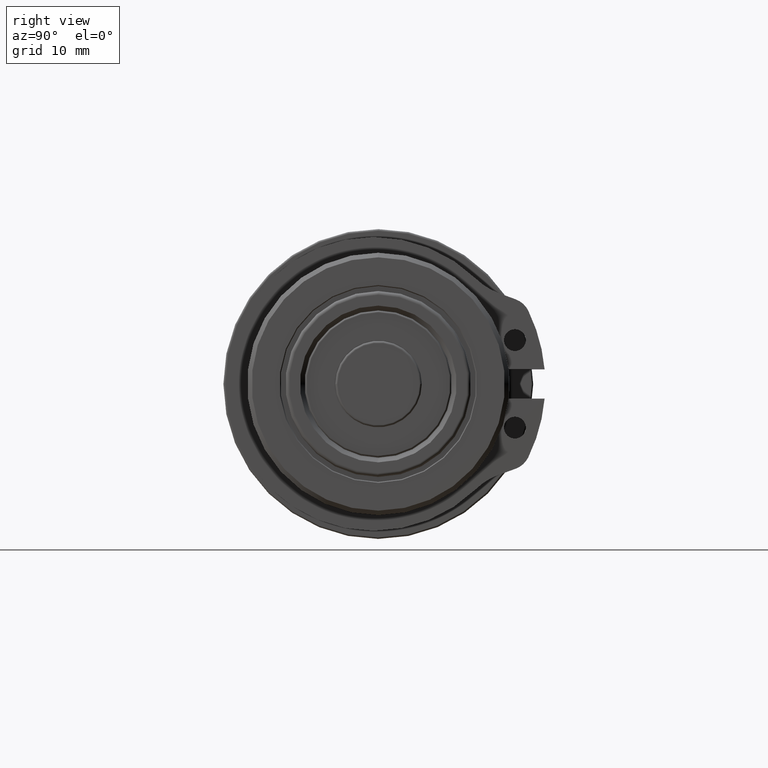
[diagram: clean part render]
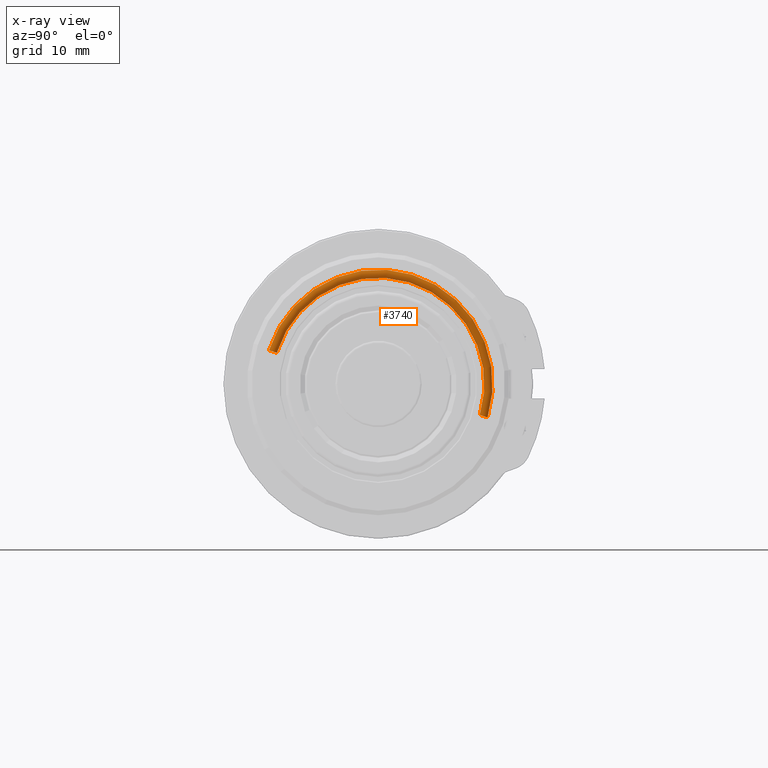
[diagram: x-ray — body ghosted, one internal face saturated and labeled with its STEP entity id]
A machine part, right view, then the same camera in x-ray: the body is ghosted and one INTERNAL B-rep face — a face not visible from any outside direction — is saturated and labeled: STEP entity #3740.
In plain terms, the highlighted toroidal blend (fillet) surface has major radius 12.1 mm and minor (blend) radius 0.45 mm.
Its self-contained STEP definition (entity closure, byte-faithful):
#21 = DIRECTION ( 'NONE',  ( -8.654154328608538700E-017, 0.9559695613830889700, -0.2934658373797953700 ) ) ;
#27 = DIRECTION ( 'NONE',  ( -1.000000000000000000, -1.772003978354989000E-016, -2.823382920799554100E-016 ) ) ;
#40 = CARTESIAN_POINT ( 'NONE',  ( 30.50000000000000400, -0.02927498360197863100, -2.188121763619656900E-015 ) ) ;
#186 = AXIS2_PLACEMENT_3D ( 'NONE', #2982, #2994, #3069 ) ;
#189 = EDGE_CURVE ( 'NONE', #4164, #4297, #1492, .T. ) ;
#208 = EDGE_CURVE ( 'NONE', #4222, #4144, #1505, .T. ) ;
#212 = AXIS2_PLACEMENT_3D ( 'NONE', #3125, #2950, #3121 ) ;
#218 = AXIS2_PLACEMENT_3D ( 'NONE', #2945, #3109, #2953 ) ;
#226 = EDGE_CURVE ( 'NONE', #4222, #4164, #1517, .T. ) ;
#294 = AXIS2_PLACEMENT_3D ( 'NONE', #3082, #2978, #2914 ) ;
#297 = EDGE_CURVE ( 'NONE', #4144, #4297, #1039, .T. ) ;
#453 = FACE_OUTER_BOUND ( 'NONE', #1407, .T. ) ;
#454 = TOROIDAL_SURFACE ( 'NONE', #838, 12.10000000000000000, 0.4500000000000017900 ) ;
#838 = AXIS2_PLACEMENT_3D ( 'NONE', #40, #27, #21 ) ;
#1039 = CIRCLE ( 'NONE', #186, 0.4500000000000015700 ) ;
#1407 = EDGE_LOOP ( 'NONE', ( #1843, #1844, #1845, #1846 ) ) ;
#1492 = CIRCLE ( 'NONE', #212, 12.55000000000000200 ) ;
#1505 = CIRCLE ( 'NONE', #294, 11.64999999999999700 ) ;
#1517 = CIRCLE ( 'NONE', #218, 0.4500000000000015700 ) ;
#1843 = ORIENTED_EDGE ( 'NONE', *, *, #189, .F. ) ;
#1844 = ORIENTED_EDGE ( 'NONE', *, *, #226, .F. ) ;
#1845 = ORIENTED_EDGE ( 'NONE', *, *, #208, .T. ) ;
#1846 = ORIENTED_EDGE ( 'NONE', *, *, #297, .T. ) ;
#2914 = DIRECTION ( 'NONE',  ( -2.978066053179068700E-016, 0.0000000000000000000, 1.000000000000000000 ) ) ;
#2945 = CARTESIAN_POINT ( 'NONE',  ( 30.50000000000000400, -11.59650667633735600, 3.550936632295520500 ) ) ;
#2950 = DIRECTION ( 'NONE',  ( -1.000000000000000000, -1.772003978354989000E-016, -2.823382920799554100E-016 ) ) ;
#2953 = DIRECTION ( 'NONE',  ( 0.0000000000000000000, 0.9559695613830888600, -0.2934658373797955900 ) ) ;
#2978 = DIRECTION ( 'NONE',  ( -1.000000000000000000, -1.772003978354989000E-016, -2.823382920799554100E-016 ) ) ;
#2982 = CARTESIAN_POINT ( 'NONE',  ( 30.50000000000000400, 11.53795670913339900, -3.550936632295526300 ) ) ;
#2994 = DIRECTION ( 'NONE',  ( -3.219090763761530200E-016, 0.2934658373797953700, 0.9559695613830889700 ) ) ;
#3069 = DIRECTION ( 'NONE',  ( 0.0000000000000000000, -0.9559695613830888600, 0.2934658373797955900 ) ) ;
#3082 = CARTESIAN_POINT ( 'NONE',  ( 30.50000000000000400, -0.02927498360197863100, -2.188121763619656900E-015 ) ) ;
#3109 = DIRECTION ( 'NONE',  ( 3.219090763761530200E-016, -0.2934658373797953100, -0.9559695613830891900 ) ) ;
#3121 = DIRECTION ( 'NONE',  ( -2.764499563309652300E-016, 0.0000000000000000000, 1.000000000000000000 ) ) ;
#3125 = CARTESIAN_POINT ( 'NONE',  ( 30.50000000000000400, -0.02927498360197863100, -2.188121763619656900E-015 ) ) ;
#3651 = CARTESIAN_POINT ( 'NONE',  ( 30.50000000000000000, 11.96814301175578900, -3.682996259116434700 ) ) ;
#3740 = ADVANCED_FACE ( 'NONE', ( #453 ), #454, .T. ) ;
#3892 = CARTESIAN_POINT ( 'NONE',  ( 30.50000000000000700, -12.02669297895974800, 3.682996259116428900 ) ) ;
#3900 = CARTESIAN_POINT ( 'NONE',  ( 30.50000000000000700, -11.16632037371496200, 3.418877005474612000 ) ) ;
#3970 = CARTESIAN_POINT ( 'NONE',  ( 30.50000000000000000, 11.10777040651100500, -3.418877005474617400 ) ) ;
#4144 = VERTEX_POINT ( 'NONE', #3970 ) ;
#4164 = VERTEX_POINT ( 'NONE', #3892 ) ;
#4222 = VERTEX_POINT ( 'NONE', #3900 ) ;
#4297 = VERTEX_POINT ( 'NONE', #3651 ) ;